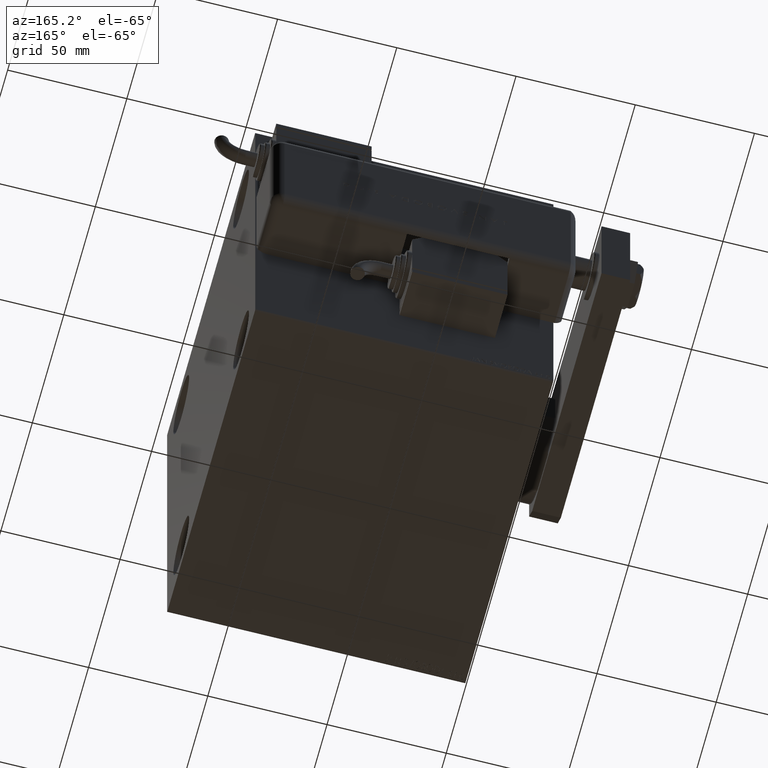
[diagram: clean part render]
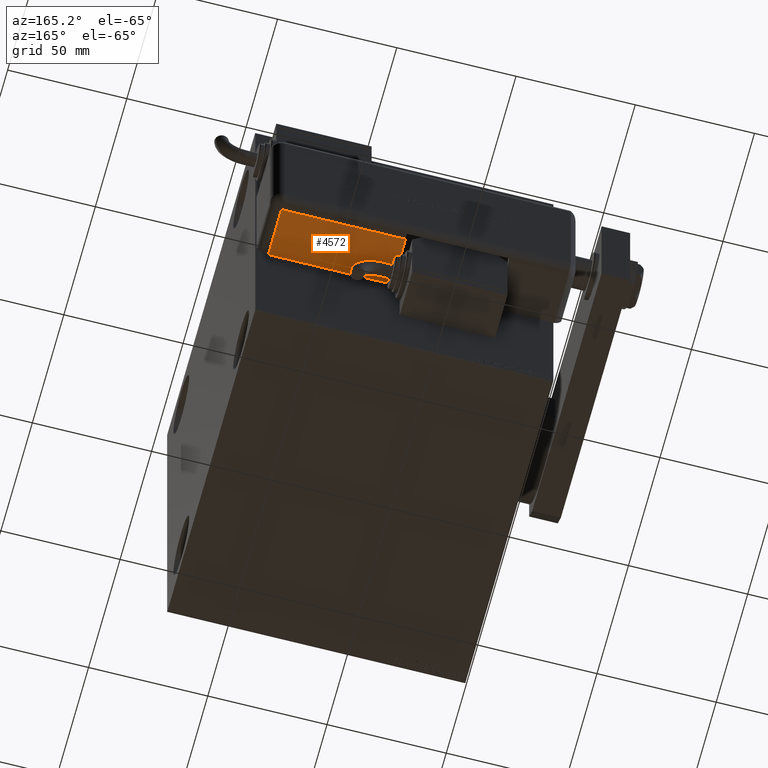
[diagram: same view with one face highlighted and labeled with its STEP entity id]
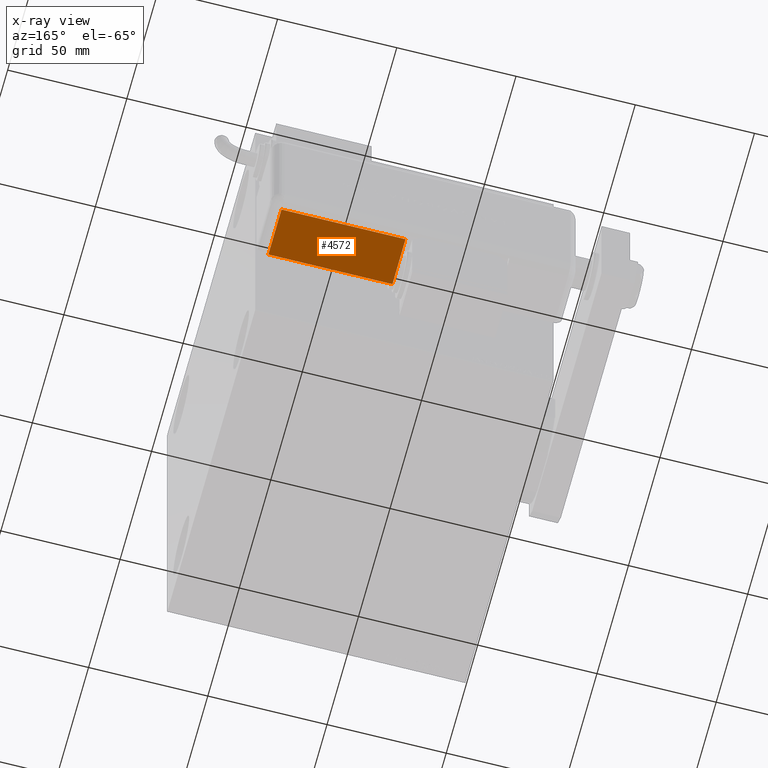
[diagram: x-ray of the same camera — body ghosted, the highlighted face saturated]
A machine part, auxiliary view. The second image highlights one B-rep face of the part: STEP entity #4572.
The next image is the same camera in x-ray: the body ghosted, the highlighted face saturated — about 0% of this face is hidden behind the body in this view.
In plain terms, the highlighted planar face has unit normal (0, 0, 1).
Its self-contained STEP definition (entity closure, byte-faithful):
#1172 = VERTEX_POINT ( 'NONE', #46984 ) ;
#1942 = DIRECTION ( 'NONE',  ( 0.000000000000000000, 0.000000000000000000, -1.000000000000000000 ) ) ;
#2843 = VECTOR ( 'NONE', #42635, 1000.000000000000000 ) ;
#4349 = EDGE_CURVE ( 'NONE', #29047, #7755, #11030, .T. ) ;
#4572 = ADVANCED_FACE ( 'NONE', ( #20998 ), #39415, .F. ) ;
#6081 = EDGE_CURVE ( 'NONE', #7755, #51101, #41270, .T. ) ;
#6364 = CARTESIAN_POINT ( 'NONE',  ( -28.99999999999999645, 22.99999999999998934, 57.00000000000000711 ) ) ;
#7755 = VERTEX_POINT ( 'NONE', #49925 ) ;
#7797 = EDGE_LOOP ( 'NONE', ( #41634, #31781, #38489, #22214 ) ) ;
#7965 = DIRECTION ( 'NONE',  ( -0.000000000000000000, 0.000000000000000000, -1.000000000000000000 ) ) ;
#10601 = LINE ( 'NONE', #6364, #2843 ) ;
#11030 = LINE ( 'NONE', #51845, #43803 ) ;
#11632 = CARTESIAN_POINT ( 'NONE',  ( -28.99999999999999645, -9.421223957302265857E-15, 125.0000000000000000 ) ) ;
#17070 = LINE ( 'NONE', #11632, #37621 ) ;
#20998 = FACE_OUTER_BOUND ( 'NONE', #7797, .T. ) ;
#22214 = ORIENTED_EDGE ( 'NONE', *, *, #6081, .T. ) ;
#25508 = VECTOR ( 'NONE', #50955, 1000.000000000000000 ) ;
#27352 = AXIS2_PLACEMENT_3D ( 'NONE', #30933, #49392, #7965 ) ;
#29047 = VERTEX_POINT ( 'NONE', #32705 ) ;
#30933 = CARTESIAN_POINT ( 'NONE',  ( -28.99999999999999645, 25.79999999999998295, 125.0000000000000000 ) ) ;
#31781 = ORIENTED_EDGE ( 'NONE', *, *, #40329, .F. ) ;
#32705 = CARTESIAN_POINT ( 'NONE',  ( -28.99999999999999645, 20.79999999999998295, 57.00000000000000711 ) ) ;
#35774 = DIRECTION ( 'NONE',  ( -0.000000000000000000, -0.000000000000000000, -1.000000000000000000 ) ) ;
#37621 = VECTOR ( 'NONE', #35774, 1000.000000000000000 ) ;
#38489 = ORIENTED_EDGE ( 'NONE', *, *, #4349, .T. ) ;
#39415 = PLANE ( 'NONE',  #27352 ) ;
#40110 = EDGE_CURVE ( 'NONE', #1172, #51101, #17070, .T. ) ;
#40329 = EDGE_CURVE ( 'NONE', #29047, #1172, #10601, .T. ) ;
#41270 = LINE ( 'NONE', #59717, #25508 ) ;
#41634 = ORIENTED_EDGE ( 'NONE', *, *, #40110, .F. ) ;
#42635 = DIRECTION ( 'NONE',  ( 0.000000000000000000, -1.000000000000000000, 0.000000000000000000 ) ) ;
#43803 = VECTOR ( 'NONE', #1942, 1000.000000000000000 ) ;
#46984 = CARTESIAN_POINT ( 'NONE',  ( -28.99999999999999645, -9.421223957302264279E-15, 57.00000000000000711 ) ) ;
#49392 = DIRECTION ( 'NONE',  ( 1.000000000000000000, 0.000000000000000000, -0.000000000000000000 ) ) ;
#49925 = CARTESIAN_POINT ( 'NONE',  ( -28.99999999999999645, 20.79999999999998295, 5.000000000000004441 ) ) ;
#50784 = CARTESIAN_POINT ( 'NONE',  ( -28.99999999999999645, -9.421223957302265857E-15, 5.000000000000004441 ) ) ;
#50955 = DIRECTION ( 'NONE',  ( 0.000000000000000000, -1.000000000000000000, 0.000000000000000000 ) ) ;
#51101 = VERTEX_POINT ( 'NONE', #50784 ) ;
#51845 = CARTESIAN_POINT ( 'NONE',  ( -28.99999999999999645, 20.79999999999998295, 125.0000000000000000 ) ) ;
#59717 = CARTESIAN_POINT ( 'NONE',  ( -28.99999999999999645, -1.040834085586084257E-14, 5.000000000000004441 ) ) ;